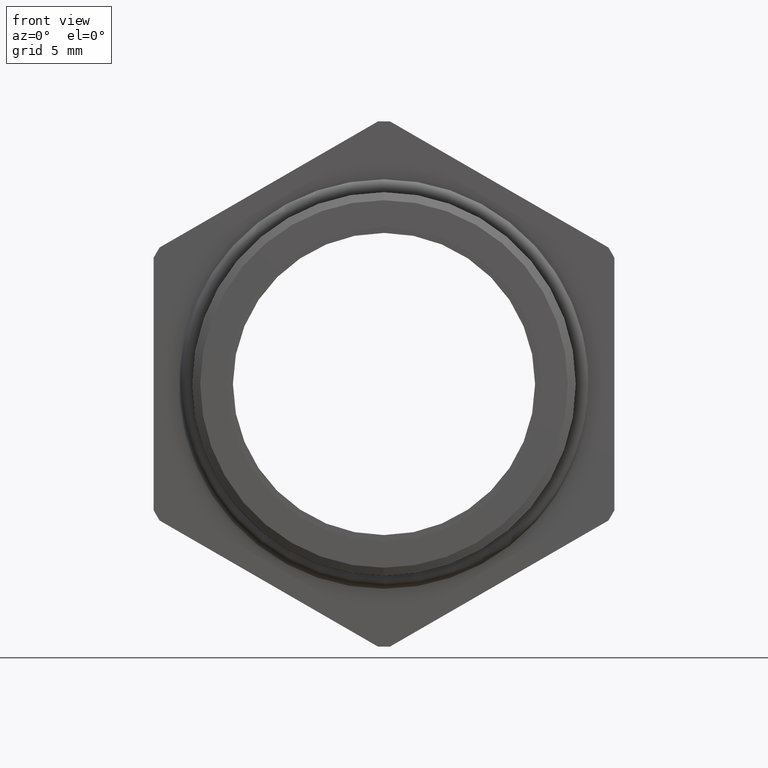
[diagram: clean part render]
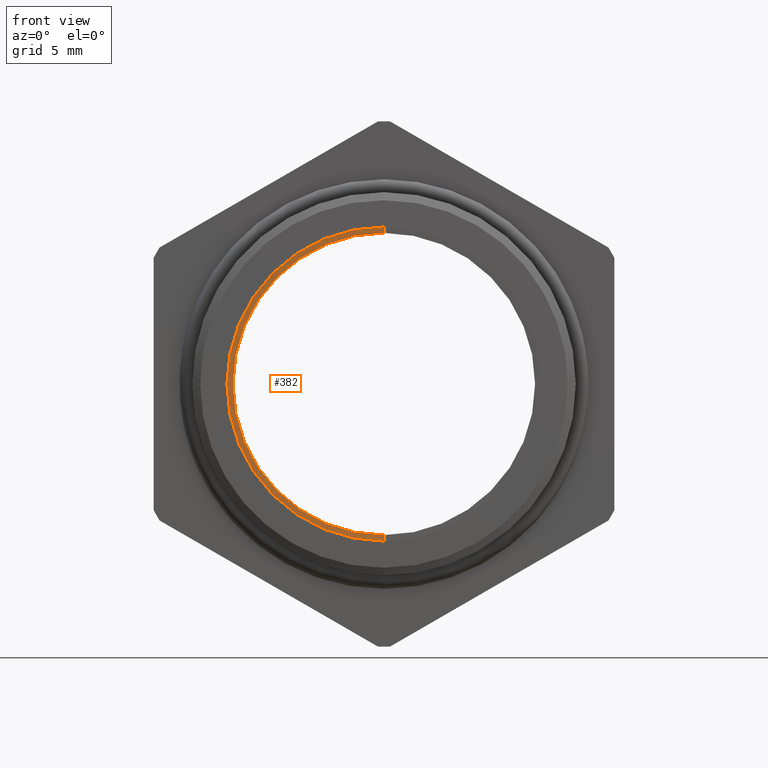
[diagram: same view with one face highlighted and labeled with its STEP entity id]
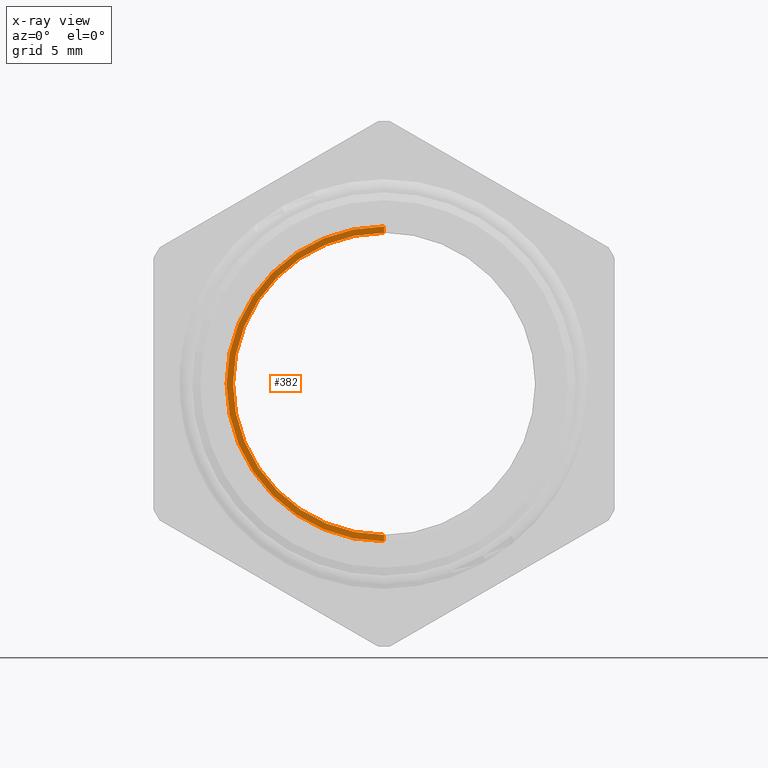
[diagram: x-ray of the same camera — body ghosted, the highlighted face saturated]
A machine part, front view. The second image highlights one B-rep face of the part: STEP entity #382.
The next image is the same camera in x-ray: the body ghosted, the highlighted face saturated — about 0% of this face is hidden behind the body in this view.
In plain terms, the highlighted conical surface has half-angle 88.312 deg.
Its self-contained STEP definition (entity closure, byte-faithful):
#364 = VERTEX_POINT ( 'NONE', #5772 ) ;
#367 = EDGE_CURVE ( 'NONE', #381, #364, #5767, .T. ) ;
#368 = ORIENTED_EDGE ( 'NONE', *, *, #377, .T. ) ;
#369 = ORIENTED_EDGE ( 'NONE', *, *, #367, .F. ) ;
#370 = VERTEX_POINT ( 'NONE', #5762 ) ;
#371 = VERTEX_POINT ( 'NONE', #5761 ) ;
#373 = ORIENTED_EDGE ( 'NONE', *, *, #374, .F. ) ;
#374 = EDGE_CURVE ( 'NONE', #371, #381, #5760, .T. ) ;
#377 = EDGE_CURVE ( 'NONE', #370, #364, #5756, .T. ) ;
#378 = EDGE_CURVE ( 'NONE', #371, #370, #5752, .T. ) ;
#379 = ORIENTED_EDGE ( 'NONE', *, *, #378, .T. ) ;
#380 = EDGE_LOOP ( 'NONE', ( #379, #368, #369, #373 ) ) ;
#381 = VERTEX_POINT ( 'NONE', #5809 ) ;
#382 = ADVANCED_FACE ( 'NONE', ( #5808 ), #5807, .F. ) ;
#5748 = DIRECTION ( 'NONE',  ( 0.0000000000000000000, 0.0000000000000000000, -1.000000000000000000 ) ) ;
#5749 = DIRECTION ( 'NONE',  ( -0.0000000000000000000, 1.000000000000000000, -0.0000000000000000000 ) ) ;
#5750 = CARTESIAN_POINT ( 'NONE',  ( 0.0000000000000000000, 0.03832196535704601000, 0.0000000000000000000 ) ) ;
#5751 = AXIS2_PLACEMENT_3D ( 'NONE', #5750, #5749, #5748 ) ;
#5752 = CIRCLE ( 'NONE', #5751, 0.2589880461203001900 ) ;
#5753 = DIRECTION ( 'NONE',  ( 1.224115347344792500E-016, -0.02945739864719126200, 0.9995660366703845700 ) ) ;
#5754 = VECTOR ( 'NONE', #5753, 39.37007874015747400 ) ;
#5755 = CARTESIAN_POINT ( 'NONE',  ( 2.931775621842221100E-017, 0.03889929809332912100, 0.2393976470508425700 ) ) ;
#5756 = LINE ( 'NONE', #5755, #5754 ) ;
#5757 = DIRECTION ( 'NONE',  ( 0.0000000000000000000, -0.02945739864719126200, -0.9995660366703845700 ) ) ;
#5758 = VECTOR ( 'NONE', #5757, 39.37007874015747400 ) ;
#5759 = CARTESIAN_POINT ( 'NONE',  ( 0.0000000000000000000, 0.03889929809332912100, -0.2393976470508425700 ) ) ;
#5760 = LINE ( 'NONE', #5759, #5758 ) ;
#5761 = CARTESIAN_POINT ( 'NONE',  ( 0.0000000000000000000, 0.03832196535704601000, -0.2589880461203001900 ) ) ;
#5762 = CARTESIAN_POINT ( 'NONE',  ( 3.171688816986526800E-017, 0.03832196535704601000, 0.2589880461203001900 ) ) ;
#5763 = DIRECTION ( 'NONE',  ( 0.0000000000000000000, 0.0000000000000000000, 1.000000000000000000 ) ) ;
#5764 = DIRECTION ( 'NONE',  ( -0.0000000000000000000, 1.000000000000000000, -0.0000000000000000000 ) ) ;
#5765 = CARTESIAN_POINT ( 'NONE',  ( 0.0000000000000000000, 0.03799999999999963800, 0.0000000000000000000 ) ) ;
#5766 = AXIS2_PLACEMENT_3D ( 'NONE', #5765, #5764, #5763 ) ;
#5767 = CIRCLE ( 'NONE', #5766, 0.2699131668257122000 ) ;
#5772 = CARTESIAN_POINT ( 'NONE',  ( 3.305482958008340700E-017, 0.03799999999999963800, 0.2699131668257122600 ) ) ;
#5802 = DIRECTION ( 'NONE',  ( 0.0000000000000000000, 0.0000000000000000000, -1.000000000000000000 ) ) ;
#5803 = DIRECTION ( 'NONE',  ( 0.0000000000000000000, -1.000000000000000000, 0.0000000000000000000 ) ) ;
#5804 = CARTESIAN_POINT ( 'NONE',  ( 0.0000000000000000000, 0.03889929809332912100, 0.0000000000000000000 ) ) ;
#5805 = AXIS2_PLACEMENT_3D ( 'NONE', #5804, #5803, #5802 ) ;
#5807 = CONICAL_SURFACE ( 'NONE', #5805, 0.2393976470508425700, 1.541334666264296200 ) ;
#5808 = FACE_OUTER_BOUND ( 'NONE', #380, .T. ) ;
#5809 = CARTESIAN_POINT ( 'NONE',  ( 0.0000000000000000000, 0.03799999999999963800, -0.2699131668257122600 ) ) ;